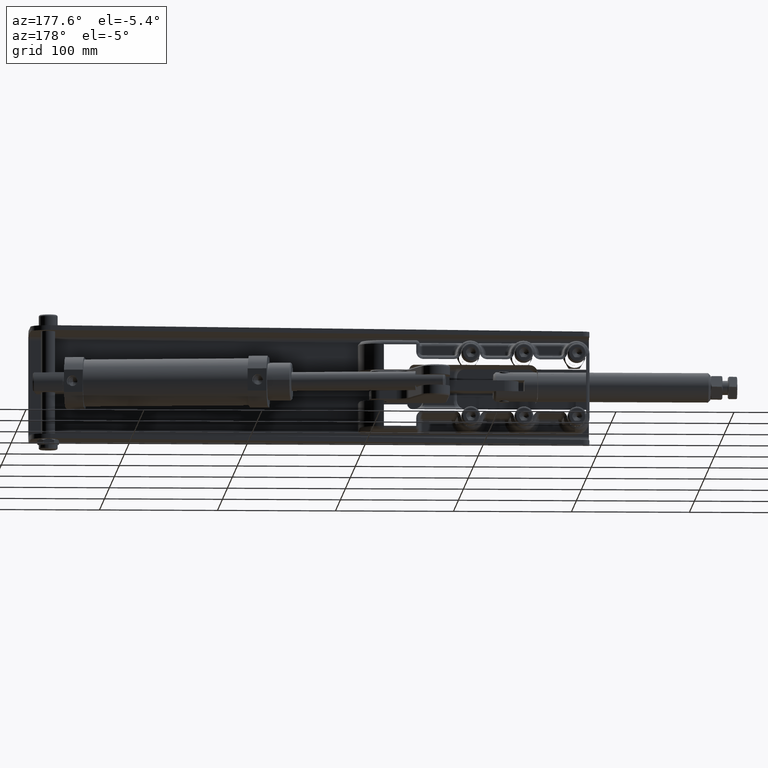
[diagram: clean part render]
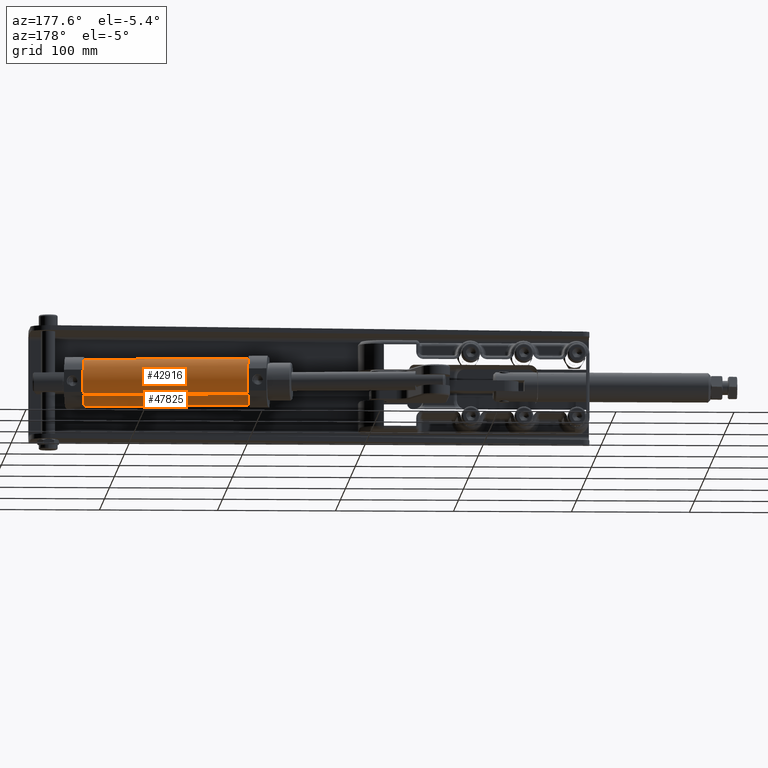
[diagram: same view with one multi-face feature highlighted, each face labeled with its STEP entity id]
A machine part, auxiliary view. The highlighted faces form ONE feature: a constant-radius fillet chain: 2 tangent blend faces with common blend radius 20 mm. The faces share edges in the B-rep.
Their STEP definitions:
[1] entity #42916 (Cylinder):
#2870 = CARTESIAN_POINT ( 'NONE',  ( 329.3172931423389400, 28.33294103903437400, 11.51932520870710300 ) ) ;
#3023 = EDGE_CURVE ( 'NONE', #59430, #23003, #43914, .T. ) ;
#3106 = VERTEX_POINT ( 'NONE', #2870 ) ;
#3222 = ORIENTED_EDGE ( 'NONE', *, *, #13256, .T. ) ;
#5981 = LINE ( 'NONE', #46012, #53403 ) ;
#6886 = CARTESIAN_POINT ( 'NONE',  ( 192.1472489757272800, 60.76262081027372400, -3.489531409987771800E-013 ) ) ;
#11469 = DIRECTION ( 'NONE',  ( -0.1156421428864282300, -0.9932909416624291500, 1.776356839400249500E-015 ) ) ;
#13256 = EDGE_CURVE ( 'NONE', #57758, #59430, #59193, .T. ) ;
#16590 = CARTESIAN_POINT ( 'NONE',  ( 331.2079808084648100, 44.57272080617402600, -2.796449215679710700E-013 ) ) ;
#18208 = CARTESIAN_POINT ( 'NONE',  ( 190.2565613096013800, 44.52284104313407200, 11.51932520870703400 ) ) ;
#18707 = DIRECTION ( 'NONE',  ( -0.9932909416624290400, 0.1156421428864284900, -4.950587102200527900E-016 ) ) ;
#21236 = DIRECTION ( 'NONE',  ( 0.1156421428864295200, 0.9932909416624287100, 0.0000000000000000000 ) ) ;
#23003 = VERTEX_POINT ( 'NONE', #18208 ) ;
#23142 = DIRECTION ( 'NONE',  ( -0.9932909416624289300, 0.1156421428864284800, -4.950587102200527900E-016 ) ) ;
#23355 = DIRECTION ( 'NONE',  ( -0.09453438330629390700, -0.8119889883569820800, 0.5759662604353690300 ) ) ;
#23841 = AXIS2_PLACEMENT_3D ( 'NONE', #16590, #48743, #21236 ) ;
#29189 = CYLINDRICAL_SURFACE ( 'NONE', #51265, 20.00000000000000700 ) ;
#32842 = EDGE_CURVE ( 'NONE', #3106, #57758, #55718, .T. ) ;
#33975 = ORIENTED_EDGE ( 'NONE', *, *, #38744, .F. ) ;
#37966 = ORIENTED_EDGE ( 'NONE', *, *, #32842, .T. ) ;
#38744 = EDGE_CURVE ( 'NONE', #3106, #23003, #5981, .T. ) ;
#38751 = CARTESIAN_POINT ( 'NONE',  ( 333.0986684745906800, 60.81250057331367700, -11.51932520870765900 ) ) ;
#39016 = DIRECTION ( 'NONE',  ( 0.9932909416624290400, -0.1156421428864284200, -1.319360731222835500E-017 ) ) ;
#41611 = CARTESIAN_POINT ( 'NONE',  ( 331.2079808084648100, 44.57272080617402600, -2.796449215679710700E-013 ) ) ;
#42916 = ADVANCED_FACE ( 'NONE', ( #53585 ), #29189, .T. ) ;
#43914 = CIRCLE ( 'NONE', #58894, 20.00000000000000000 ) ;
#46012 = CARTESIAN_POINT ( 'NONE',  ( 329.3172931423389400, 28.33294103903437700, 11.51932520870710300 ) ) ;
#46973 = VECTOR ( 'NONE', #57226, 1000.000000000000100 ) ;
#48743 = DIRECTION ( 'NONE',  ( -0.9932909416624290400, 0.1156421428864285000, 1.319360731222816500E-017 ) ) ;
#49036 = ORIENTED_EDGE ( 'NONE', *, *, #3023, .T. ) ;
#49443 = CARTESIAN_POINT ( 'NONE',  ( 333.0986684745906800, 60.81250057331367700, -11.51932520870765900 ) ) ;
#51023 = CARTESIAN_POINT ( 'NONE',  ( 194.0379366418531200, 77.00240057741338300, -11.51932520870772900 ) ) ;
#51265 = AXIS2_PLACEMENT_3D ( 'NONE', #41611, #18707, #23355 ) ;
#53403 = VECTOR ( 'NONE', #23142, 1000.000000000000100 ) ;
#53585 = FACE_OUTER_BOUND ( 'NONE', #57629, .T. ) ;
#55718 = CIRCLE ( 'NONE', #23841, 20.00000000000001400 ) ;
#57226 = DIRECTION ( 'NONE',  ( -0.9932909416624289300, 0.1156421428864284800, -4.950587102200527900E-016 ) ) ;
#57629 = EDGE_LOOP ( 'NONE', ( #37966, #3222, #49036, #33975 ) ) ;
#57758 = VERTEX_POINT ( 'NONE', #49443 ) ;
#58894 = AXIS2_PLACEMENT_3D ( 'NONE', #6886, #39016, #11469 ) ;
#59193 = LINE ( 'NONE', #38751, #46973 ) ;
#59430 = VERTEX_POINT ( 'NONE', #51023 ) ;
[2] entity #47825 (Cylinder):
#895 = ORIENTED_EDGE ( 'NONE', *, *, #9277, .T. ) ;
#921 = ORIENTED_EDGE ( 'NONE', *, *, #13256, .F. ) ;
#1880 = DIRECTION ( 'NONE',  ( -0.9932909416624290400, 0.1156421428864285000, 1.319360731222816500E-017 ) ) ;
#2870 = CARTESIAN_POINT ( 'NONE',  ( 329.3172931423389400, 28.33294103903437400, 11.51932520870710300 ) ) ;
#3106 = VERTEX_POINT ( 'NONE', #2870 ) ;
#4357 = DIRECTION ( 'NONE',  ( 0.9932909416624290400, -0.1156421428864284200, -1.319360731222835500E-017 ) ) ;
#5981 = LINE ( 'NONE', #46012, #53403 ) ;
#6885 = CIRCLE ( 'NONE', #15888, 20.00000000000000000 ) ;
#7251 = EDGE_CURVE ( 'NONE', #57758, #3106, #15202, .T. ) ;
#9037 = DIRECTION ( 'NONE',  ( -0.9932909416624290400, 0.1156421428864284900, -4.950587102200527900E-016 ) ) ;
#9277 = EDGE_CURVE ( 'NONE', #23003, #59430, #6885, .T. ) ;
#12684 = AXIS2_PLACEMENT_3D ( 'NONE', #29411, #1880, #34011 ) ;
#13256 = EDGE_CURVE ( 'NONE', #57758, #59430, #59193, .T. ) ;
#15202 = CIRCLE ( 'NONE', #12684, 20.00000000000001400 ) ;
#15888 = AXIS2_PLACEMENT_3D ( 'NONE', #31888, #4357, #36471 ) ;
#18208 = CARTESIAN_POINT ( 'NONE',  ( 190.2565613096013800, 44.52284104313407200, 11.51932520870703400 ) ) ;
#22943 = DIRECTION ( 'NONE',  ( -0.09453438330629390700, -0.8119889883569820800, 0.5759662604353690300 ) ) ;
#23003 = VERTEX_POINT ( 'NONE', #18208 ) ;
#23142 = DIRECTION ( 'NONE',  ( -0.9932909416624289300, 0.1156421428864284800, -4.950587102200527900E-016 ) ) ;
#29411 = CARTESIAN_POINT ( 'NONE',  ( 331.2079808084648100, 44.57272080617402600, -2.796449215679710700E-013 ) ) ;
#31888 = CARTESIAN_POINT ( 'NONE',  ( 192.1472489757272800, 60.76262081027372400, -3.489531409987771800E-013 ) ) ;
#31992 = FACE_OUTER_BOUND ( 'NONE', #58450, .T. ) ;
#32182 = CARTESIAN_POINT ( 'NONE',  ( 331.2079808084648100, 44.57272080617402600, -2.796449215679710700E-013 ) ) ;
#34011 = DIRECTION ( 'NONE',  ( 0.1156421428864295200, 0.9932909416624287100, 0.0000000000000000000 ) ) ;
#34234 = ORIENTED_EDGE ( 'NONE', *, *, #38744, .T. ) ;
#35309 = AXIS2_PLACEMENT_3D ( 'NONE', #32182, #9037, #22943 ) ;
#36439 = ORIENTED_EDGE ( 'NONE', *, *, #7251, .T. ) ;
#36471 = DIRECTION ( 'NONE',  ( -0.1156421428864282300, -0.9932909416624291500, 0.0000000000000000000 ) ) ;
#38744 = EDGE_CURVE ( 'NONE', #3106, #23003, #5981, .T. ) ;
#38751 = CARTESIAN_POINT ( 'NONE',  ( 333.0986684745906800, 60.81250057331367700, -11.51932520870765900 ) ) ;
#42760 = CYLINDRICAL_SURFACE ( 'NONE', #35309, 20.00000000000000700 ) ;
#46012 = CARTESIAN_POINT ( 'NONE',  ( 329.3172931423389400, 28.33294103903437700, 11.51932520870710300 ) ) ;
#46973 = VECTOR ( 'NONE', #57226, 1000.000000000000100 ) ;
#47825 = ADVANCED_FACE ( 'NONE', ( #31992 ), #42760, .T. ) ;
#49443 = CARTESIAN_POINT ( 'NONE',  ( 333.0986684745906800, 60.81250057331367700, -11.51932520870765900 ) ) ;
#51023 = CARTESIAN_POINT ( 'NONE',  ( 194.0379366418531200, 77.00240057741338300, -11.51932520870772900 ) ) ;
#53403 = VECTOR ( 'NONE', #23142, 1000.000000000000100 ) ;
#57226 = DIRECTION ( 'NONE',  ( -0.9932909416624289300, 0.1156421428864284800, -4.950587102200527900E-016 ) ) ;
#57758 = VERTEX_POINT ( 'NONE', #49443 ) ;
#58450 = EDGE_LOOP ( 'NONE', ( #921, #36439, #34234, #895 ) ) ;
#59193 = LINE ( 'NONE', #38751, #46973 ) ;
#59430 = VERTEX_POINT ( 'NONE', #51023 ) ;